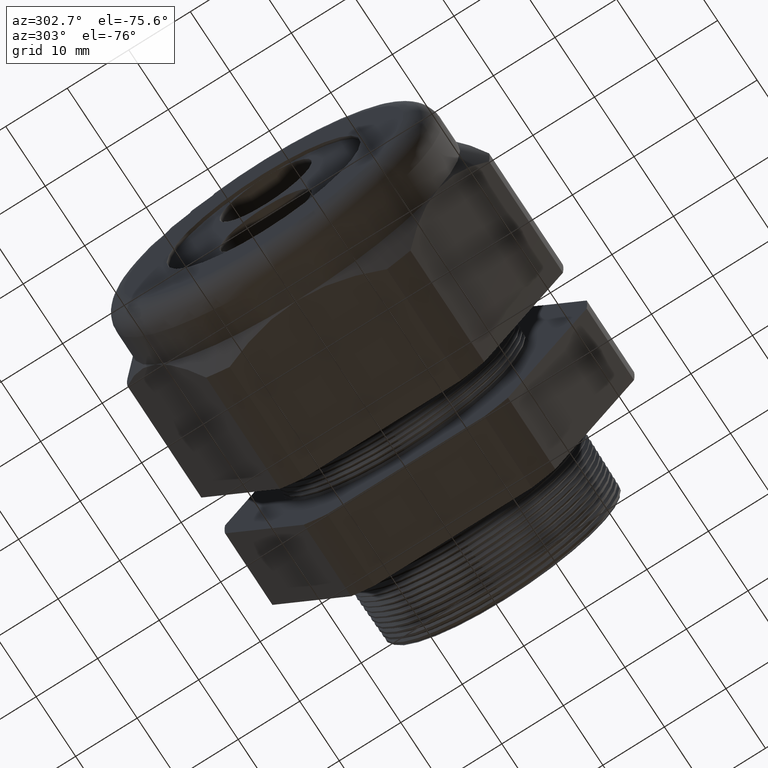
[diagram: clean part render]
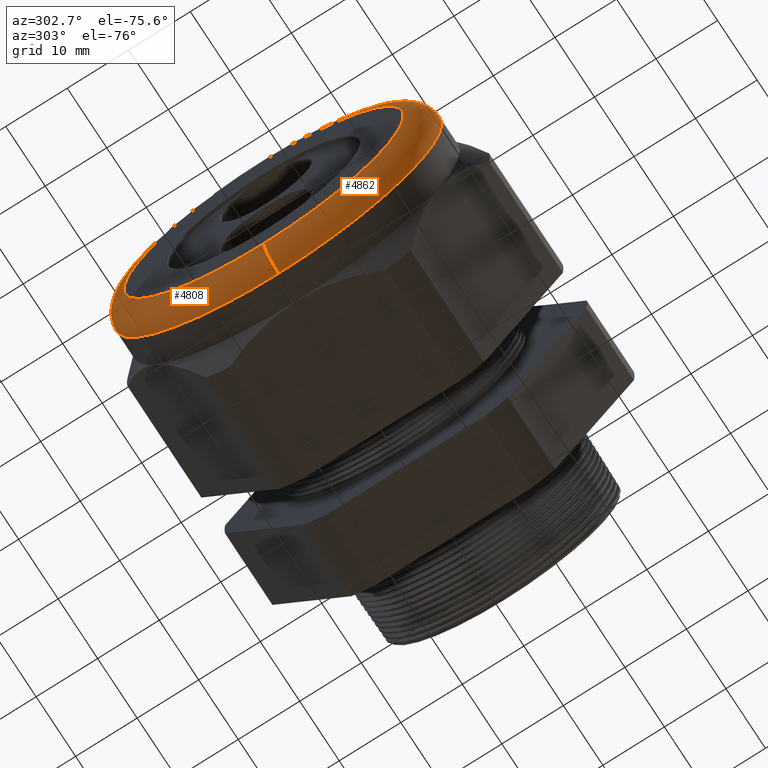
[diagram: same view with one multi-face feature highlighted, each face labeled with its STEP entity id]
A machine part, auxiliary view. The highlighted faces form ONE feature: a constant-radius fillet chain: 2 tangent blend faces with common blend radius 3.81 mm. The faces share edges in the B-rep.
Their STEP definitions:
[1] entity #4808 (Torus):
#2471 = DIRECTION ( 'NONE',  ( 0.0000000000000000000, 0.0000000000000000000, 1.000000000000000000 ) ) ;
#2472 = DIRECTION ( 'NONE',  ( -1.000000000000000000, 0.0000000000000000000, 0.0000000000000000000 ) ) ;
#2473 = CARTESIAN_POINT ( 'NONE',  ( -2.200000000000000200, 0.0000000000000000000, 0.0000000000000000000 ) ) ;
#2474 = AXIS2_PLACEMENT_3D ( 'NONE', #2473, #2472, #2471 ) ;
#2475 = CIRCLE ( 'NONE', #2474, 0.8949999999999999100 ) ;
#2801 = DIRECTION ( 'NONE',  ( 0.0000000000000000000, 0.0000000000000000000, 1.000000000000000000 ) ) ;
#2802 = DIRECTION ( 'NONE',  ( 1.000000000000000000, 0.0000000000000000000, 0.0000000000000000000 ) ) ;
#2803 = CARTESIAN_POINT ( 'NONE',  ( -2.049999999999999800, 0.0000000000000000000, 0.0000000000000000000 ) ) ;
#2804 = AXIS2_PLACEMENT_3D ( 'NONE', #2803, #2802, #2801 ) ;
#2805 = CIRCLE ( 'NONE', #2804, 1.044999999999999900 ) ;
#2806 = CARTESIAN_POINT ( 'NONE',  ( -2.049999999999999800, 1.279755905108984100E-016, 1.044999999999999900 ) ) ;
#2807 = DIRECTION ( 'NONE',  ( 0.0000000000000000000, -1.224646799147352500E-016, 1.000000000000000000 ) ) ;
#2808 = DIRECTION ( 'NONE',  ( 0.0000000000000000000, 1.000000000000000000, 1.224646799147353200E-016 ) ) ;
#2809 = CARTESIAN_POINT ( 'NONE',  ( -2.049999999999999800, 1.096058885236880900E-016, -0.8949999999999999100 ) ) ;
#2810 = AXIS2_PLACEMENT_3D ( 'NONE', #2809, #2808, #2807 ) ;
#2811 = CIRCLE ( 'NONE', #2810, 0.1500000000000000500 ) ;
#2812 = CARTESIAN_POINT ( 'NONE',  ( -2.049999999999999800, 0.0000000000000000000, -1.044999999999999900 ) ) ;
#2847 = DIRECTION ( 'NONE',  ( 0.0000000000000000000, 0.0000000000000000000, 1.000000000000000000 ) ) ;
#2848 = DIRECTION ( 'NONE',  ( -1.000000000000000000, 0.0000000000000000000, 0.0000000000000000000 ) ) ;
#2849 = CARTESIAN_POINT ( 'NONE',  ( -2.049999999999999800, 0.0000000000000000000, 0.0000000000000000000 ) ) ;
#2850 = AXIS2_PLACEMENT_3D ( 'NONE', #2849, #2848, #2847 ) ;
#2851 = TOROIDAL_SURFACE ( 'NONE', #2850, 0.8949999999999999100, 0.1499999999999999900 ) ;
#2852 = FACE_OUTER_BOUND ( 'NONE', #4804, .T. ) ;
#2895 = CARTESIAN_POINT ( 'NONE',  ( -2.200000000000000200, 0.0000000000000000000, 0.8949999999999999100 ) ) ;
#2913 = DIRECTION ( 'NONE',  ( 0.0000000000000000000, 0.0000000000000000000, -1.000000000000000000 ) ) ;
#2914 = DIRECTION ( 'NONE',  ( 0.0000000000000000000, -1.000000000000000000, 0.0000000000000000000 ) ) ;
#2915 = CARTESIAN_POINT ( 'NONE',  ( -2.049999999999999800, 0.0000000000000000000, 0.8949999999999999100 ) ) ;
#2916 = AXIS2_PLACEMENT_3D ( 'NONE', #2915, #2914, #2913 ) ;
#2917 = CIRCLE ( 'NONE', #2916, 0.1500000000000000500 ) ;
#3136 = CARTESIAN_POINT ( 'NONE',  ( -2.200000000000000200, 1.187907395172932400E-016, -0.8949999999999999100 ) ) ;
#4642 = EDGE_CURVE ( 'NONE', #4848, #4986, #2475, .T. ) ;
#4647 = ORIENTED_EDGE ( 'NONE', *, *, #4642, .F. ) ;
#4791 = ORIENTED_EDGE ( 'NONE', *, *, #4799, .F. ) ;
#4792 = VERTEX_POINT ( 'NONE', #2812 ) ;
#4794 = ORIENTED_EDGE ( 'NONE', *, *, #4796, .T. ) ;
#4796 = EDGE_CURVE ( 'NONE', #4792, #4986, #2811, .T. ) ;
#4798 = VERTEX_POINT ( 'NONE', #2806 ) ;
#4799 = EDGE_CURVE ( 'NONE', #4792, #4798, #2805, .T. ) ;
#4804 = EDGE_LOOP ( 'NONE', ( #4791, #4794, #4647, #4841 ) ) ;
#4808 = ADVANCED_FACE ( 'NONE', ( #2852 ), #2851, .T. ) ;
#4837 = EDGE_CURVE ( 'NONE', #4798, #4848, #2917, .T. ) ;
#4841 = ORIENTED_EDGE ( 'NONE', *, *, #4837, .F. ) ;
#4848 = VERTEX_POINT ( 'NONE', #2895 ) ;
#4986 = VERTEX_POINT ( 'NONE', #3136 ) ;
[2] entity #4862 (Torus):
#1002 = DIRECTION ( 'NONE',  ( -1.000000000000000000, 0.0000000000000000000, 0.0000000000000000000 ) ) ;
#1003 = CARTESIAN_POINT ( 'NONE',  ( -2.200000000000000200, 0.0000000000000000000, 0.0000000000000000000 ) ) ;
#1007 = AXIS2_PLACEMENT_3D ( 'NONE', #1003, #1002, #1261 ) ;
#1008 = CIRCLE ( 'NONE', #1007, 0.8949999999999999100 ) ;
#1176 = DIRECTION ( 'NONE',  ( 0.0000000000000000000, 0.0000000000000000000, 1.000000000000000000 ) ) ;
#1177 = DIRECTION ( 'NONE',  ( 1.000000000000000000, 0.0000000000000000000, 0.0000000000000000000 ) ) ;
#1178 = CARTESIAN_POINT ( 'NONE',  ( -2.049999999999999800, 0.0000000000000000000, 0.0000000000000000000 ) ) ;
#1179 = AXIS2_PLACEMENT_3D ( 'NONE', #1178, #1177, #1176 ) ;
#1180 = CIRCLE ( 'NONE', #1179, 1.044999999999999900 ) ;
#1261 = DIRECTION ( 'NONE',  ( 0.0000000000000000000, 0.0000000000000000000, 1.000000000000000000 ) ) ;
#2806 = CARTESIAN_POINT ( 'NONE',  ( -2.049999999999999800, 1.279755905108984100E-016, 1.044999999999999900 ) ) ;
#2807 = DIRECTION ( 'NONE',  ( 0.0000000000000000000, -1.224646799147352500E-016, 1.000000000000000000 ) ) ;
#2808 = DIRECTION ( 'NONE',  ( 0.0000000000000000000, 1.000000000000000000, 1.224646799147353200E-016 ) ) ;
#2809 = CARTESIAN_POINT ( 'NONE',  ( -2.049999999999999800, 1.096058885236880900E-016, -0.8949999999999999100 ) ) ;
#2810 = AXIS2_PLACEMENT_3D ( 'NONE', #2809, #2808, #2807 ) ;
#2811 = CIRCLE ( 'NONE', #2810, 0.1500000000000000500 ) ;
#2812 = CARTESIAN_POINT ( 'NONE',  ( -2.049999999999999800, 0.0000000000000000000, -1.044999999999999900 ) ) ;
#2895 = CARTESIAN_POINT ( 'NONE',  ( -2.200000000000000200, 0.0000000000000000000, 0.8949999999999999100 ) ) ;
#2913 = DIRECTION ( 'NONE',  ( 0.0000000000000000000, 0.0000000000000000000, -1.000000000000000000 ) ) ;
#2914 = DIRECTION ( 'NONE',  ( 0.0000000000000000000, -1.000000000000000000, 0.0000000000000000000 ) ) ;
#2915 = CARTESIAN_POINT ( 'NONE',  ( -2.049999999999999800, 0.0000000000000000000, 0.8949999999999999100 ) ) ;
#2916 = AXIS2_PLACEMENT_3D ( 'NONE', #2915, #2914, #2913 ) ;
#2917 = CIRCLE ( 'NONE', #2916, 0.1500000000000000500 ) ;
#2932 = DIRECTION ( 'NONE',  ( 0.0000000000000000000, 0.0000000000000000000, 1.000000000000000000 ) ) ;
#2933 = DIRECTION ( 'NONE',  ( -1.000000000000000000, 0.0000000000000000000, 0.0000000000000000000 ) ) ;
#2934 = AXIS2_PLACEMENT_3D ( 'NONE', #2941, #2933, #2932 ) ;
#2935 = TOROIDAL_SURFACE ( 'NONE', #2934, 0.8949999999999999100, 0.1499999999999999900 ) ;
#2936 = FACE_OUTER_BOUND ( 'NONE', #4857, .T. ) ;
#2941 = CARTESIAN_POINT ( 'NONE',  ( -2.049999999999999800, 0.0000000000000000000, 0.0000000000000000000 ) ) ;
#3136 = CARTESIAN_POINT ( 'NONE',  ( -2.200000000000000200, 1.187907395172932400E-016, -0.8949999999999999100 ) ) ;
#3913 = EDGE_CURVE ( 'NONE', #4798, #4792, #1180, .T. ) ;
#4270 = EDGE_CURVE ( 'NONE', #4986, #4848, #1008, .T. ) ;
#4792 = VERTEX_POINT ( 'NONE', #2812 ) ;
#4796 = EDGE_CURVE ( 'NONE', #4792, #4986, #2811, .T. ) ;
#4798 = VERTEX_POINT ( 'NONE', #2806 ) ;
#4837 = EDGE_CURVE ( 'NONE', #4798, #4848, #2917, .T. ) ;
#4848 = VERTEX_POINT ( 'NONE', #2895 ) ;
#4857 = EDGE_LOOP ( 'NONE', ( #4859, #4985, #4979, #4980 ) ) ;
#4859 = ORIENTED_EDGE ( 'NONE', *, *, #4796, .F. ) ;
#4862 = ADVANCED_FACE ( 'NONE', ( #2936 ), #2935, .T. ) ;
#4979 = ORIENTED_EDGE ( 'NONE', *, *, #4837, .T. ) ;
#4980 = ORIENTED_EDGE ( 'NONE', *, *, #4270, .F. ) ;
#4985 = ORIENTED_EDGE ( 'NONE', *, *, #3913, .F. ) ;
#4986 = VERTEX_POINT ( 'NONE', #3136 ) ;